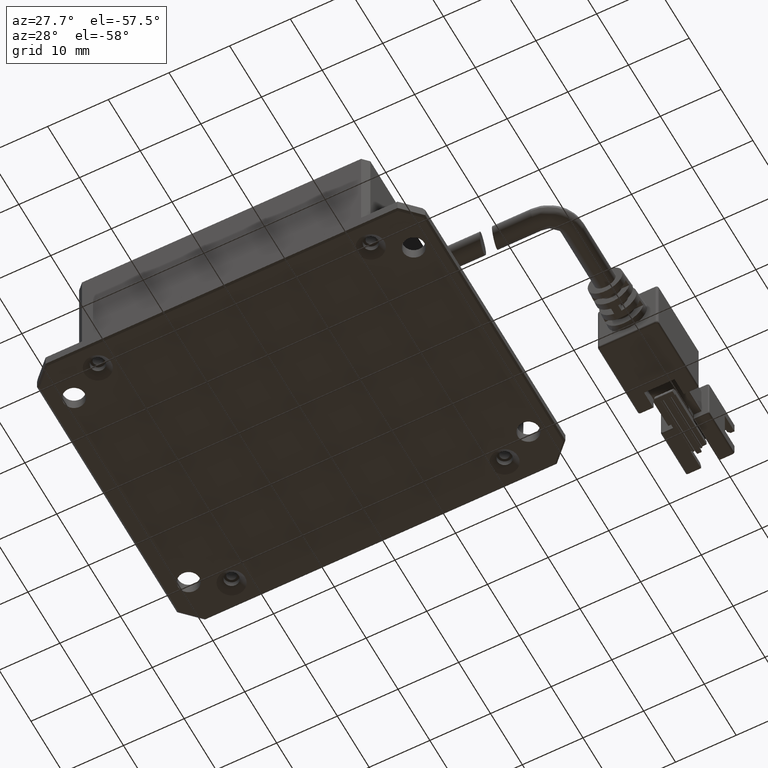
[diagram: clean part render]
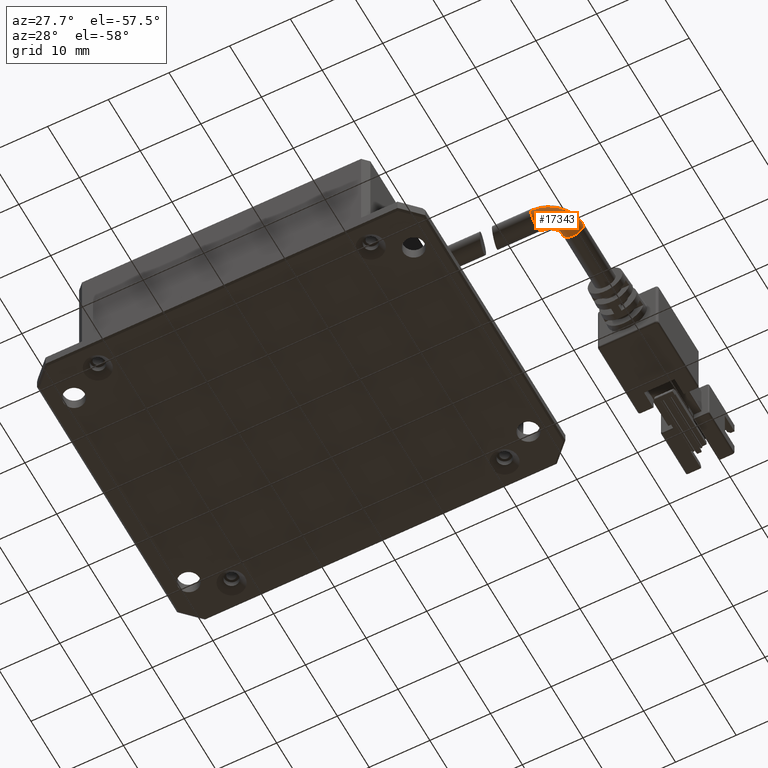
[diagram: same view with one face highlighted and labeled with its STEP entity id]
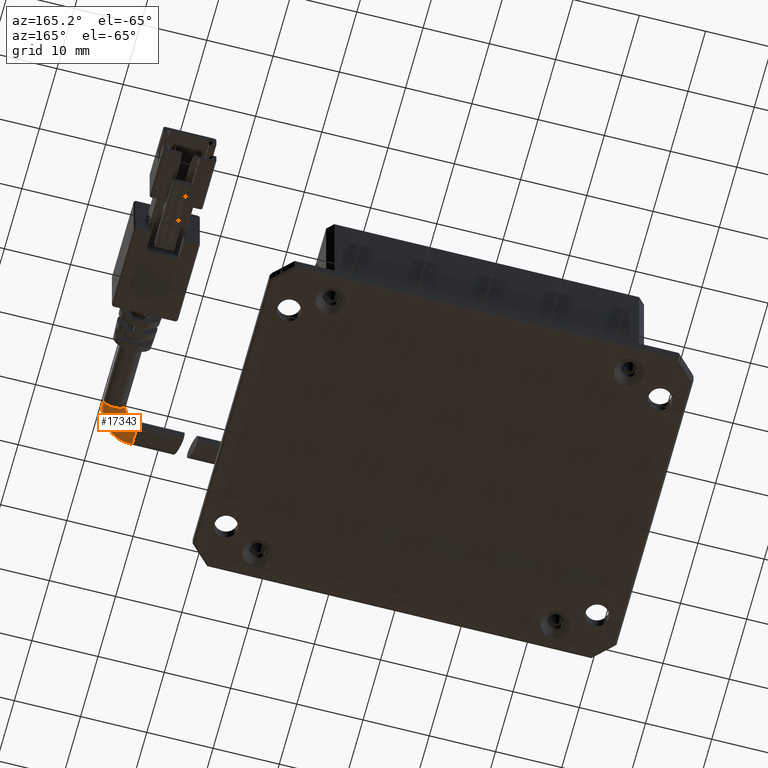
[diagram: same view with one face highlighted and labeled with its STEP entity id]
A machine part, auxiliary view. The second image highlights one B-rep face of the part: STEP entity #17343.
A second angle (auxiliary view) of the same face is appended — the face is thin or edge-on in the first view.
In plain terms, the highlighted face is a freeform B-spline surface patch.
Its self-contained STEP definition (entity closure, byte-faithful):
#12 =( BOUNDED_SURFACE ( )  B_SPLINE_SURFACE ( 3, 3, ( 
 ( #10419, #16853, #7336, #18449 ),
 ( #8929, #20045, #10488, #1078 ),
 ( #12072, #2648, #13663, #4252 ),
 ( #15283, #5821, #16925, #7395 ) ),
 .UNSPECIFIED., .F., .F., .F. ) 
 B_SPLINE_SURFACE_WITH_KNOTS ( ( 4, 4 ),
 ( 4, 4 ),
 ( 0.0000000000000000000, 1.000000000000000000 ),
 ( 0.0000000000000000000, 1.000000000000000000 ),
 .UNSPECIFIED. ) 
 GEOMETRIC_REPRESENTATION_ITEM ( )  RATIONAL_B_SPLINE_SURFACE ( (
 ( 1.000000000000000000, 0.8047378541243649400, 0.8047378541243649400, 1.000000000000000000),
 ( 0.3333333333333333700, 0.2682459513747883500, 0.2682459513747883500, 0.3333333333333333700),
 ( 0.3333333333333333700, 0.2682459513747883500, 0.2682459513747883500, 0.3333333333333333700),
 ( 1.000000000000000000, 0.8047378541243649400, 0.8047378541243649400, 1.000000000000000000) ) ) 
 REPRESENTATION_ITEM ( '' )  SURFACE ( )  );
#189 = DIRECTION ( 'NONE',  ( 1.000000000000000000, 1.836970198721029700E-016, -2.588449845256445000E-031 ) ) ;
#307 = VERTEX_POINT ( 'NONE', #20543 ) ;
#747 = CIRCLE ( 'NONE', #8024, 5.749999999999998200 ) ;
#1078 = CARTESIAN_POINT ( 'NONE',  ( 43.09316533027873700, -5.959049255440961100, 1.499999999983692800 ) ) ;
#1338 = VERTEX_POINT ( 'NONE', #7896 ) ;
#2648 = CARTESIAN_POINT ( 'NONE',  ( 48.84316533027873700, -7.077321271795670800, 1.499999999983693000 ) ) ;
#2788 = AXIS2_PLACEMENT_3D ( 'NONE', #9578, #189, #11154 ) ;
#2921 = VERTEX_POINT ( 'NONE', #7758 ) ;
#3050 = CIRCLE ( 'NONE', #13277, 1.750000000000001600 ) ;
#3843 = CARTESIAN_POINT ( 'NONE',  ( 43.09316533027873700, -3.709049255440967800, 4.999999999983692200 ) ) ;
#4252 = CARTESIAN_POINT ( 'NONE',  ( 43.09316533027873700, -9.459049255440964600, 1.499999999983692800 ) ) ;
#4508 = DIRECTION ( 'NONE',  ( -2.588449845256445000E-031, -2.672764710092196000E-049, -1.000000000000000000 ) ) ;
#5191 = CARTESIAN_POINT ( 'NONE',  ( 43.09316533027873700, -7.709049255440968200, 4.999999999983692200 ) ) ;
#5437 = DIRECTION ( 'NONE',  ( -1.000000000000000000, 0.0000000000000000000, 0.0000000000000000000 ) ) ;
#5475 = EDGE_CURVE ( 'NONE', #15721, #307, #747, .T. ) ;
#5821 = CARTESIAN_POINT ( 'NONE',  ( 48.84316533027873700, -7.077321271795669900, 4.999999999983690400 ) ) ;
#6199 = DIRECTION ( 'NONE',  ( -3.081487911019577400E-033, 1.000000000000000000, -2.672764710092188000E-049 ) ) ;
#6442 = EDGE_LOOP ( 'NONE', ( #7405, #15264, #11640, #8556, #8938 ) ) ;
#6783 = DIRECTION ( 'NONE',  ( 0.0000000000000000000, -1.000000000000000000, 0.0000000000000000000 ) ) ;
#6891 = EDGE_CURVE ( 'NONE', #307, #2921, #17102, .T. ) ;
#7336 = CARTESIAN_POINT ( 'NONE',  ( 44.41118481493926100, -5.959049255440966400, 4.999999999983690400 ) ) ;
#7395 = CARTESIAN_POINT ( 'NONE',  ( 43.09316533027873000, -9.459049255440964600, 4.999999999983692200 ) ) ;
#7405 = ORIENTED_EDGE ( 'NONE', *, *, #12051, .F. ) ;
#7758 = CARTESIAN_POINT ( 'NONE',  ( 43.09316533027873700, -7.709049255440968200, 3.249999999983691700 ) ) ;
#7896 = CARTESIAN_POINT ( 'NONE',  ( 43.09316533027873700, -5.959049255440968200, 4.999999999983692200 ) ) ;
#8024 = AXIS2_PLACEMENT_3D ( 'NONE', #3843, #14905, #5437 ) ;
#8556 = ORIENTED_EDGE ( 'NONE', *, *, #6891, .T. ) ;
#8743 = EDGE_CURVE ( 'NONE', #15721, #17414, #3050, .T. ) ;
#8929 = CARTESIAN_POINT ( 'NONE',  ( 45.34316533027873700, -3.709049255440967300, 1.499999999983692800 ) ) ;
#8938 = ORIENTED_EDGE ( 'NONE', *, *, #11674, .T. ) ;
#9578 = CARTESIAN_POINT ( 'NONE',  ( 43.09316533027873700, -7.709049255440968200, 4.999999999983692200 ) ) ;
#10419 = CARTESIAN_POINT ( 'NONE',  ( 45.34316533027873000, -3.709049255440967300, 4.999999999983692200 ) ) ;
#10488 = CARTESIAN_POINT ( 'NONE',  ( 44.41118481493925400, -5.959049255440965500, 1.499999999983693000 ) ) ;
#11154 = DIRECTION ( 'NONE',  ( 0.0000000000000000000, -1.000000000000000000, 0.0000000000000000000 ) ) ;
#11640 = ORIENTED_EDGE ( 'NONE', *, *, #5475, .T. ) ;
#11674 = EDGE_CURVE ( 'NONE', #2921, #1338, #15454, .T. ) ;
#12051 = EDGE_CURVE ( 'NONE', #17414, #1338, #16550, .T. ) ;
#12072 = CARTESIAN_POINT ( 'NONE',  ( 48.84316533027873700, -3.709049255440967300, 1.499999999983692800 ) ) ;
#13277 = AXIS2_PLACEMENT_3D ( 'NONE', #15671, #6199, #17299 ) ;
#13612 = AXIS2_PLACEMENT_3D ( 'NONE', #13928, #4508, #15536 ) ;
#13663 = CARTESIAN_POINT ( 'NONE',  ( 46.46143734663343100, -9.459049255440968200, 1.499999999983693000 ) ) ;
#13928 = CARTESIAN_POINT ( 'NONE',  ( 43.09316533027873700, -3.709049255440967800, 4.999999999983692200 ) ) ;
#14798 = AXIS2_PLACEMENT_3D ( 'NONE', #5191, #16271, #6783 ) ;
#14905 = DIRECTION ( 'NONE',  ( -2.588449845256445000E-031, -2.672764710092196000E-049, -1.000000000000000000 ) ) ;
#15264 = ORIENTED_EDGE ( 'NONE', *, *, #8743, .F. ) ;
#15283 = CARTESIAN_POINT ( 'NONE',  ( 48.84316533027873700, -3.709049255440967300, 4.999999999983692200 ) ) ;
#15454 = CIRCLE ( 'NONE', #2788, 1.749999999999999800 ) ;
#15536 = DIRECTION ( 'NONE',  ( -1.000000000000000000, 0.0000000000000000000, 0.0000000000000000000 ) ) ;
#15671 = CARTESIAN_POINT ( 'NONE',  ( 47.09316533027874400, -3.709049255440967800, 4.999999999983692200 ) ) ;
#15721 = VERTEX_POINT ( 'NONE', #20043 ) ;
#16271 = DIRECTION ( 'NONE',  ( 1.000000000000000000, 1.836970198721029700E-016, -2.588449845256445000E-031 ) ) ;
#16550 = CIRCLE ( 'NONE', #13612, 2.249999999999995100 ) ;
#16853 = CARTESIAN_POINT ( 'NONE',  ( 45.34316533027871500, -5.027068740101500000, 4.999999999983690400 ) ) ;
#16925 = CARTESIAN_POINT ( 'NONE',  ( 46.46143734663343100, -9.459049255440968200, 4.999999999983690400 ) ) ;
#17102 = CIRCLE ( 'NONE', #14798, 1.749999999999999800 ) ;
#17299 = DIRECTION ( 'NONE',  ( 1.000000000000000000, 0.0000000000000000000, 0.0000000000000000000 ) ) ;
#17343 = ADVANCED_FACE ( 'NONE', ( #18201 ), #12, .T. ) ;
#17414 = VERTEX_POINT ( 'NONE', #18647 ) ;
#18201 = FACE_OUTER_BOUND ( 'NONE', #6442, .T. ) ;
#18449 = CARTESIAN_POINT ( 'NONE',  ( 43.09316533027873000, -5.959049255440961100, 4.999999999983692200 ) ) ;
#18647 = CARTESIAN_POINT ( 'NONE',  ( 45.34316533027873700, -3.709049255440967800, 4.999999999983692200 ) ) ;
#20043 = CARTESIAN_POINT ( 'NONE',  ( 48.84316533027874400, -3.709049255440967800, 4.999999999983692200 ) ) ;
#20045 = CARTESIAN_POINT ( 'NONE',  ( 45.34316533027873700, -5.027068740101500000, 1.499999999983693000 ) ) ;
#20543 = CARTESIAN_POINT ( 'NONE',  ( 43.09316533027873700, -9.459049255440968200, 4.999999999983692200 ) ) ;